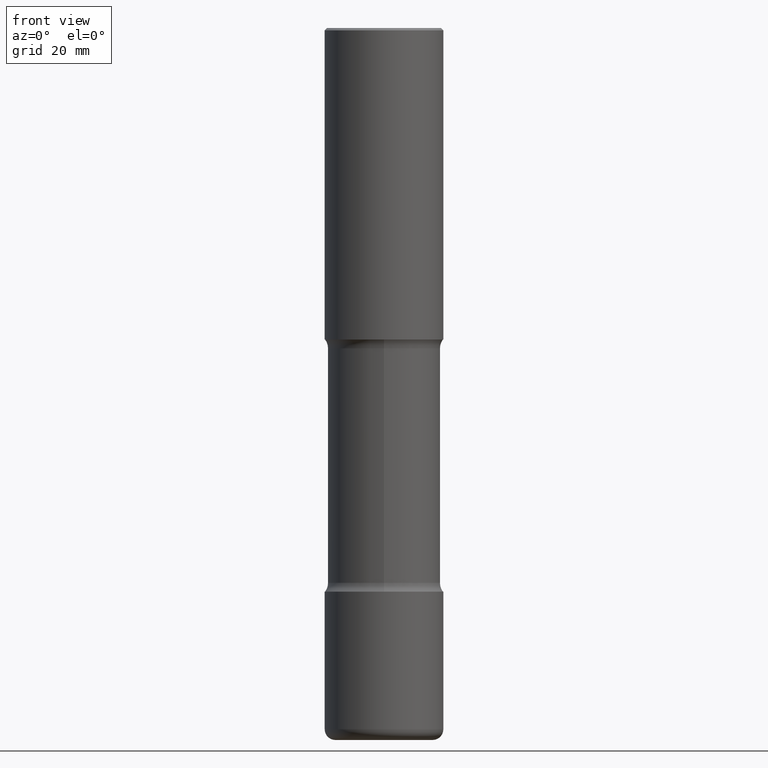
[diagram: clean part render]
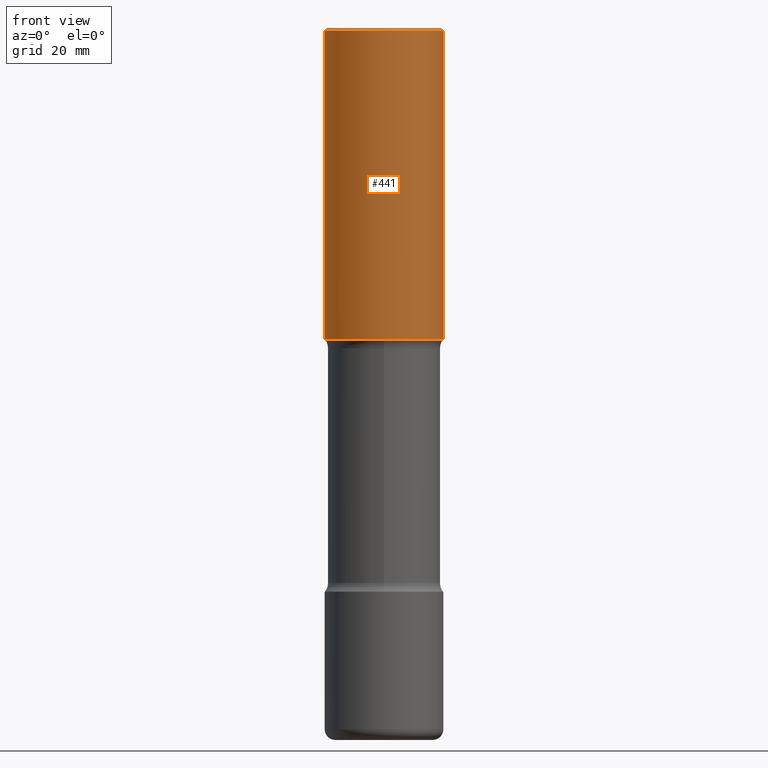
[diagram: same view with one face highlighted and labeled with its STEP entity id]
A machine part, front view. The second image highlights one B-rep face of the part: STEP entity #441.
In plain terms, the highlighted cylindrical surface (partial cylindrical patch) has radius 12.7 mm, axis along (-0, 0, 1).
Its self-contained STEP definition (entity closure, byte-faithful):
#1 = ORIENTED_EDGE ( 'NONE', *, *, #66, .T. ) ;
#4 = CARTESIAN_POINT ( 'NONE',  ( 4.890937612370298557E-31, -6.982962677686327354E-17, -0.02000000000000010103 ) ) ;
#11 = VECTOR ( 'NONE', #216, 39.37007874015748143 ) ;
#12 = FACE_OUTER_BOUND ( 'NONE', #178, .T. ) ;
#35 = ORIENTED_EDGE ( 'NONE', *, *, #184, .T. ) ;
#51 = VERTEX_POINT ( 'NONE', #74 ) ;
#53 = CARTESIAN_POINT ( 'NONE',  ( -0.5000000000000002220, 3.552713678800502507E-15, -2.459467545127454012E-29 ) ) ;
#66 = EDGE_CURVE ( 'NONE', #433, #51, #193, .T. ) ;
#74 = CARTESIAN_POINT ( 'NONE',  ( 0.5000000000000004441, -1.265661985330638997E-14, -2.624999999999999556 ) ) ;
#102 = CIRCLE ( 'NONE', #444, 0.5000000000000000000 ) ;
#147 = CARTESIAN_POINT ( 'NONE',  ( 6.419355616235982445E-29, -9.165138514463255034E-15, -2.624999999999999556 ) ) ;
#165 = LINE ( 'NONE', #53, #11 ) ;
#178 = EDGE_LOOP ( 'NONE', ( #510, #1, #35, #413 ) ) ;
#179 = DIRECTION ( 'NONE',  ( -2.445468806185136597E-29, 3.491481338843145583E-15, 1.000000000000000000 ) ) ;
#184 = EDGE_CURVE ( 'NONE', #51, #320, #296, .T. ) ;
#193 = CIRCLE ( 'NONE', #456, 0.5000000000000004441 ) ;
#205 = DIRECTION ( 'NONE',  ( 1.000000000000000000, -6.982962677686266711E-15, 4.876176775795935793E-29 ) ) ;
#213 = CARTESIAN_POINT ( 'NONE',  ( -0.5000000000000004441, -1.064770391819553504E-15, -2.624999999999999556 ) ) ;
#216 = DIRECTION ( 'NONE',  ( -2.445468806185136877E-29, 3.491481338843145188E-15, 1.000000000000000000 ) ) ;
#232 = EDGE_CURVE ( 'NONE', #239, #320, #102, .T. ) ;
#239 = VERTEX_POINT ( 'NONE', #448 ) ;
#244 = DIRECTION ( 'NONE',  ( -2.445468806185136597E-29, 3.491481338843145583E-15, 1.000000000000000000 ) ) ;
#250 = CARTESIAN_POINT ( 'NONE',  ( 0.5000000000000002220, -3.491481338843134933E-15, 2.438088387897969017E-29 ) ) ;
#296 = LINE ( 'NONE', #250, #347 ) ;
#304 = CARTESIAN_POINT ( 'NONE',  ( 0.5000000000000000000, -3.500078625662629079E-15, -0.02000000000000010103 ) ) ;
#320 = VERTEX_POINT ( 'NONE', #304 ) ;
#322 = AXIS2_PLACEMENT_3D ( 'NONE', #559, #244, #205 ) ;
#342 = EDGE_CURVE ( 'NONE', #433, #239, #165, .T. ) ;
#347 = VECTOR ( 'NONE', #434, 39.37007874015748143 ) ;
#413 = ORIENTED_EDGE ( 'NONE', *, *, #232, .F. ) ;
#424 = CYLINDRICAL_SURFACE ( 'NONE', #322, 0.5000000000000002220 ) ;
#433 = VERTEX_POINT ( 'NONE', #213 ) ;
#434 = DIRECTION ( 'NONE',  ( -2.445468806185136877E-29, 3.491481338843145188E-15, 1.000000000000000000 ) ) ;
#437 = DIRECTION ( 'NONE',  ( 1.000000000000000000, -6.982962677686266711E-15, 0.000000000000000000 ) ) ;
#441 = ADVANCED_FACE ( 'NONE', ( #12 ), #424, .T. ) ;
#444 = AXIS2_PLACEMENT_3D ( 'NONE', #4, #179, #437 ) ;
#448 = CARTESIAN_POINT ( 'NONE',  ( -0.5000000000000000000, 3.421651712066270057E-15, -0.02000000000000010103 ) ) ;
#456 = AXIS2_PLACEMENT_3D ( 'NONE', #147, #460, #551 ) ;
#460 = DIRECTION ( 'NONE',  ( -2.445468806185136597E-29, 3.491481338843145583E-15, 1.000000000000000000 ) ) ;
#510 = ORIENTED_EDGE ( 'NONE', *, *, #342, .F. ) ;
#551 = DIRECTION ( 'NONE',  ( 1.000000000000000000, -6.982962677686264344E-15, 0.000000000000000000 ) ) ;
#559 = CARTESIAN_POINT ( 'NONE',  ( 0.000000000000000000, 0.000000000000000000, 0.000000000000000000 ) ) ;